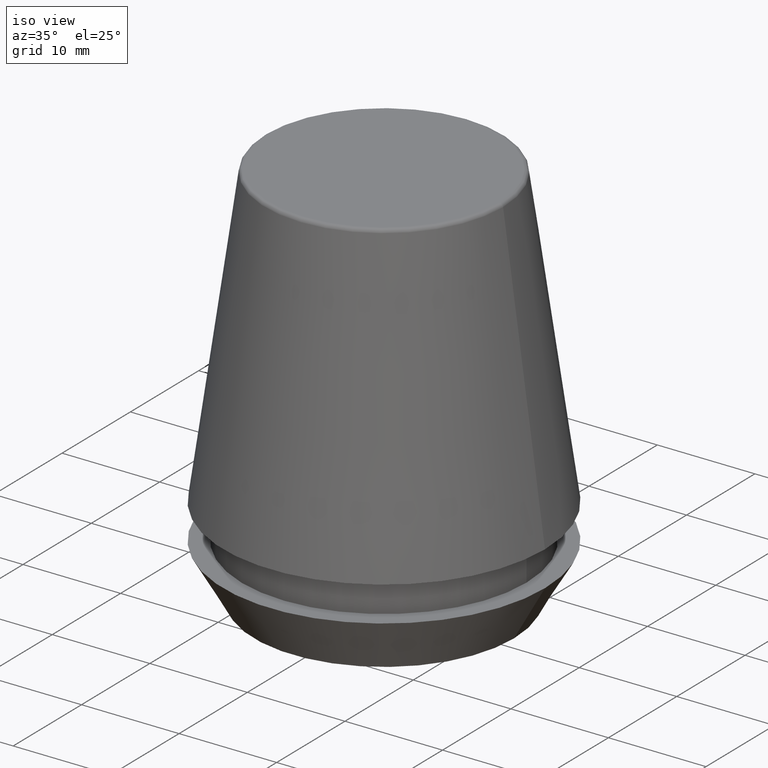
[diagram: clean part render]
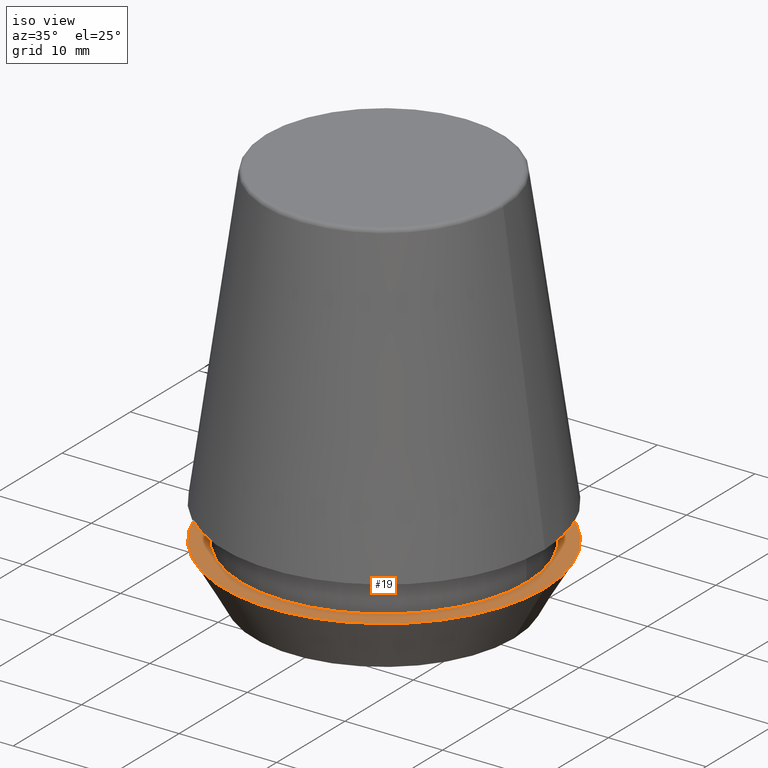
[diagram: same view with one face highlighted and labeled with its STEP entity id]
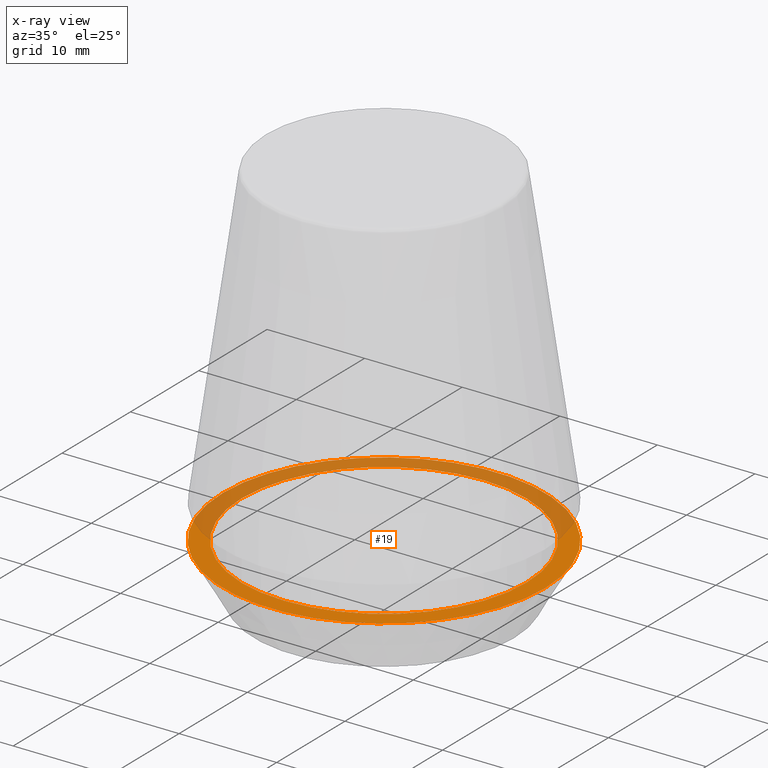
[diagram: x-ray of the same camera — body ghosted, the highlighted face saturated]
A machine part, iso view. The second image highlights one B-rep face of the part: STEP entity #19.
The next image is the same camera in x-ray: the body ghosted, the highlighted face saturated — about 46% of this face is hidden behind the body in this view.
In plain terms, the highlighted planar face has unit normal (0, 0, -1).
Its self-contained STEP definition (entity closure, byte-faithful):
#1 = EDGE_CURVE ( 'NONE', #123, #70, #239, .T. ) ;
#2 = VERTEX_POINT ( 'NONE', #189 ) ;
#18 = AXIS2_PLACEMENT_3D ( 'NONE', #99, #285, #249 ) ;
#19 = ADVANCED_FACE ( 'NONE', ( #296, #103 ), #48, .F. ) ;
#21 = EDGE_CURVE ( 'NONE', #70, #123, #358, .T. ) ;
#26 = ORIENTED_EDGE ( 'NONE', *, *, #129, .T. ) ;
#46 = EDGE_CURVE ( 'NONE', #2, #106, #253, .T. ) ;
#48 = PLANE ( 'NONE',  #298 ) ;
#70 = VERTEX_POINT ( 'NONE', #365 ) ;
#80 = DIRECTION ( 'NONE',  ( -0.0000000000000000000, -0.0000000000000000000, 1.000000000000000000 ) ) ;
#98 = ORIENTED_EDGE ( 'NONE', *, *, #46, .T. ) ;
#99 = CARTESIAN_POINT ( 'NONE',  ( 0.0000000000000000000, 0.0000000000000000000, 5.500000000000005300 ) ) ;
#103 = FACE_OUTER_BOUND ( 'NONE', #179, .T. ) ;
#105 = DIRECTION ( 'NONE',  ( -0.0000000000000000000, -0.0000000000000000000, 1.000000000000000000 ) ) ;
#106 = VERTEX_POINT ( 'NONE', #385 ) ;
#112 = CARTESIAN_POINT ( 'NONE',  ( 0.0000000000000000000, 0.0000000000000000000, 5.500000000000005300 ) ) ;
#123 = VERTEX_POINT ( 'NONE', #335 ) ;
#129 = EDGE_CURVE ( 'NONE', #106, #2, #222, .T. ) ;
#140 = DIRECTION ( 'NONE',  ( -1.000000000000000000, 0.0000000000000000000, -0.0000000000000000000 ) ) ;
#146 = CARTESIAN_POINT ( 'NONE',  ( 0.0000000000000000000, 0.0000000000000000000, 5.500000000000005300 ) ) ;
#179 = EDGE_LOOP ( 'NONE', ( #98, #26 ) ) ;
#184 = AXIS2_PLACEMENT_3D ( 'NONE', #354, #218, #224 ) ;
#189 = CARTESIAN_POINT ( 'NONE',  ( 16.50000000000000000, 0.0000000000000000000, 5.500000000000005300 ) ) ;
#190 = ORIENTED_EDGE ( 'NONE', *, *, #21, .F. ) ;
#209 = ORIENTED_EDGE ( 'NONE', *, *, #1, .F. ) ;
#211 = DIRECTION ( 'NONE',  ( 1.000000000000000000, 0.0000000000000000000, 0.0000000000000000000 ) ) ;
#218 = DIRECTION ( 'NONE',  ( -0.0000000000000000000, -0.0000000000000000000, 1.000000000000000000 ) ) ;
#220 = DIRECTION ( 'NONE',  ( 1.000000000000000000, 0.0000000000000000000, 0.0000000000000000000 ) ) ;
#221 = AXIS2_PLACEMENT_3D ( 'NONE', #146, #105, #211 ) ;
#222 = CIRCLE ( 'NONE', #221, 16.50000000000000000 ) ;
#224 = DIRECTION ( 'NONE',  ( 1.000000000000000000, 0.0000000000000000000, 0.0000000000000000000 ) ) ;
#239 = CIRCLE ( 'NONE', #377, 14.60000000000000000 ) ;
#249 = DIRECTION ( 'NONE',  ( 1.000000000000000000, 0.0000000000000000000, 0.0000000000000000000 ) ) ;
#253 = CIRCLE ( 'NONE', #184, 16.50000000000000000 ) ;
#254 = EDGE_LOOP ( 'NONE', ( #190, #209 ) ) ;
#261 = DIRECTION ( 'NONE',  ( 0.0000000000000000000, 0.0000000000000000000, -1.000000000000000000 ) ) ;
#285 = DIRECTION ( 'NONE',  ( -0.0000000000000000000, -0.0000000000000000000, 1.000000000000000000 ) ) ;
#296 = FACE_BOUND ( 'NONE', #254, .T. ) ;
#298 = AXIS2_PLACEMENT_3D ( 'NONE', #308, #261, #140 ) ;
#308 = CARTESIAN_POINT ( 'NONE',  ( 0.0000000000000000000, 16.50000000000000000, 5.500000000000002700 ) ) ;
#335 = CARTESIAN_POINT ( 'NONE',  ( -14.60000000000000000, 1.787984326755135800E-015, 5.500000000000005300 ) ) ;
#354 = CARTESIAN_POINT ( 'NONE',  ( 0.0000000000000000000, 0.0000000000000000000, 5.500000000000005300 ) ) ;
#358 = CIRCLE ( 'NONE', #18, 14.60000000000000000 ) ;
#365 = CARTESIAN_POINT ( 'NONE',  ( 14.60000000000000000, 0.0000000000000000000, 5.500000000000005300 ) ) ;
#377 = AXIS2_PLACEMENT_3D ( 'NONE', #112, #80, #220 ) ;
#385 = CARTESIAN_POINT ( 'NONE',  ( -16.50000000000000000, 2.020667218593133100E-015, 5.500000000000005300 ) ) ;